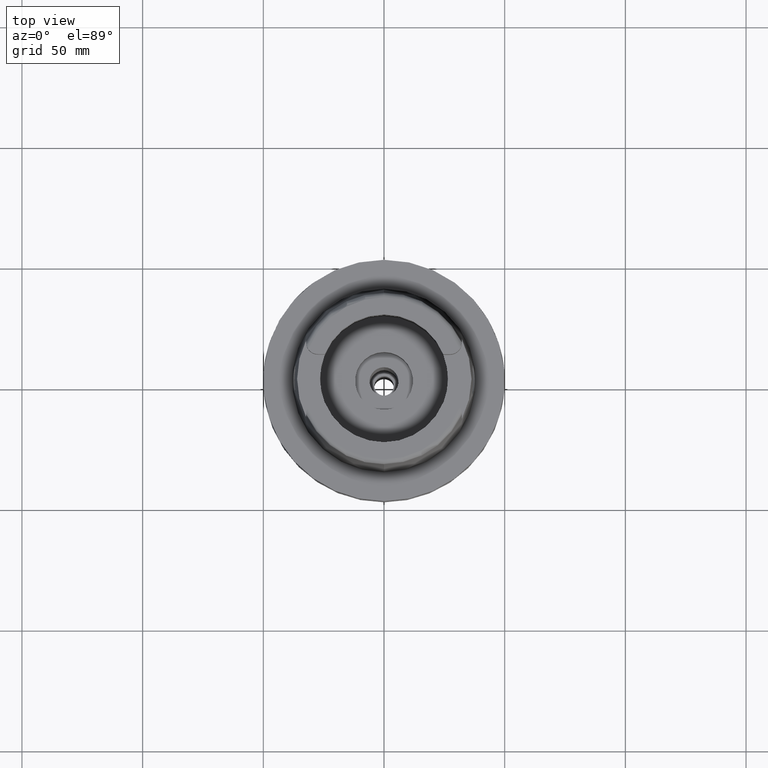
[diagram: clean part render]
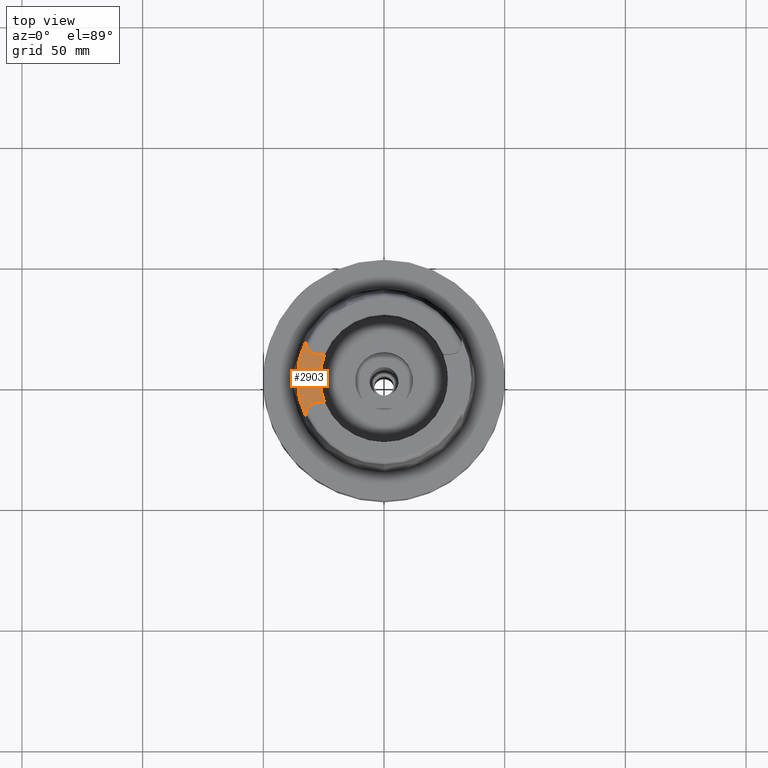
[diagram: same view with one face highlighted and labeled with its STEP entity id]
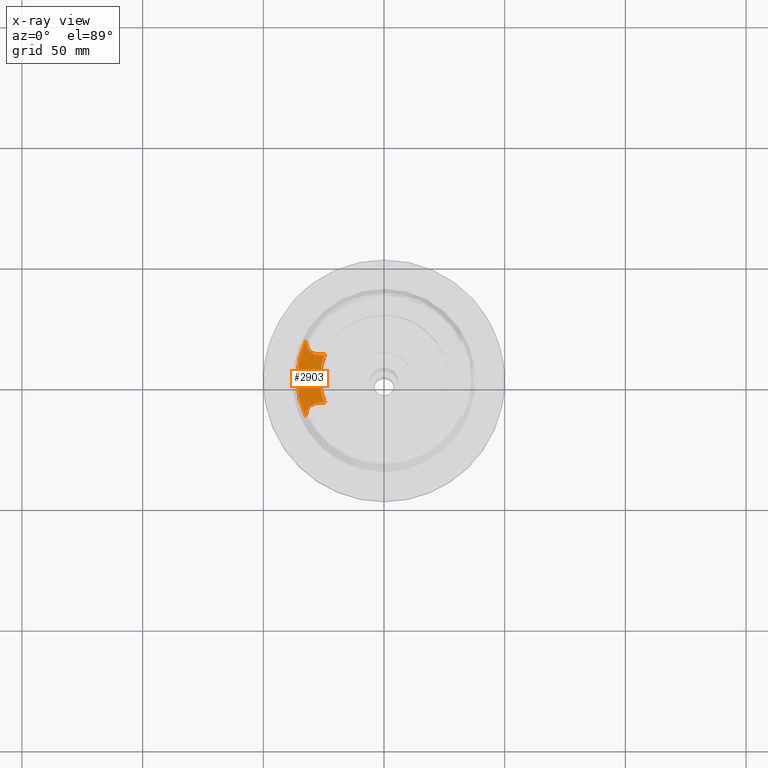
[diagram: x-ray of the same camera — body ghosted, the highlighted face saturated]
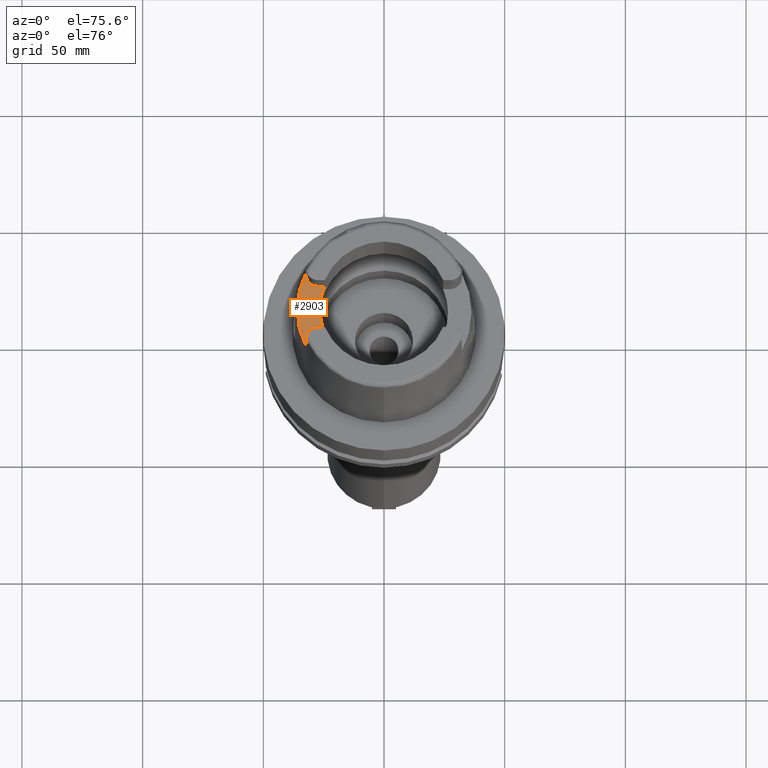
[diagram: same view with one face highlighted and labeled with its STEP entity id]
A machine part, top view. The second image highlights one B-rep face of the part: STEP entity #2903.
The next image is the same camera in x-ray: the body ghosted, the highlighted face saturated — about 0% of this face is hidden behind the body in this view.
A second angle (auxiliary view) of the same face is appended — the face is thin or edge-on in the first view.
In plain terms, the highlighted planar face has unit normal (0, 0, 1).
Its self-contained STEP definition (entity closure, byte-faithful):
#100=CARTESIAN_POINT('',(0.E0,0.E0,4.E1));
#101=DIRECTION('',(0.E0,0.E0,1.E0));
#102=DIRECTION('',(-9.259134021805E-1,3.777358490566E-1,0.E0));
#103=AXIS2_PLACEMENT_3D('',#100,#101,#102);
#108=DIRECTION('',(-1.E0,1.435733797137E-13,0.E0));
#109=VECTOR('',#108,2.833294842218E0);
#110=CARTESIAN_POINT('',(-2.453670515778E1,-1.001E1,4.E1));
#111=LINE('',#110,#109);
#115=CARTESIAN_POINT('',(-2.737E1,-1.489E1,4.E1));
#116=DIRECTION('',(0.E0,0.E0,1.E0));
#117=DIRECTION('',(0.E0,1.E0,0.E0));
#118=AXIS2_PLACEMENT_3D('',#115,#116,#117);
#123=DIRECTION('',(1.119083709708E-6,-9.999999999994E-1,-1.731560047849E-13));
#124=VECTOR('',#123,1.107940431483E0);
#125=CARTESIAN_POINT('',(-3.225E1,-1.489E1,4.E1));
#126=LINE('',#125,#124);
#130=CARTESIAN_POINT('',(0.E0,0.E0,4.E1));
#131=DIRECTION('',(0.E0,0.E0,-1.E0));
#132=DIRECTION('',(-8.958345712660E-1,-4.443876921391E-1,0.E0));
#133=AXIS2_PLACEMENT_3D('',#130,#131,#132);
#138=DIRECTION('',(4.825266097351E-6,-9.999999999884E-1,1.731606717193E-13));
#139=VECTOR('',#138,1.107910570861E0);
#140=CARTESIAN_POINT('',(-3.225000534596E1,1.599791057085E1,4.E1));
#141=LINE('',#140,#139);
#145=CARTESIAN_POINT('',(-2.737E1,1.489E1,4.E1));
#146=DIRECTION('',(0.E0,0.E0,1.E0));
#147=DIRECTION('',(-1.E0,0.E0,0.E0));
#148=AXIS2_PLACEMENT_3D('',#145,#146,#147);
#153=DIRECTION('',(1.E0,1.442003377037E-13,0.E0));
#154=VECTOR('',#153,2.833294842218E0);
#155=CARTESIAN_POINT('',(-2.737E1,1.001E1,4.E1));
#156=LINE('',#155,#154);
#2468=CARTESIAN_POINT('',(-2.737E1,1.001E1,4.E1));
#2469=VERTEX_POINT('',#2468);
#2470=CARTESIAN_POINT('',(-3.225E1,1.489E1,4.E1));
#2471=VERTEX_POINT('',#2470);
#2474=CARTESIAN_POINT('',(-2.453670515778E1,1.001E1,4.E1));
#2475=VERTEX_POINT('',#2474);
#2476=CARTESIAN_POINT('',(-2.453670515778E1,-1.001E1,4.E1));
#2477=VERTEX_POINT('',#2476);
#2482=CARTESIAN_POINT('',(-2.737E1,-1.001E1,4.E1));
#2483=VERTEX_POINT('',#2482);
#2484=CARTESIAN_POINT('',(-3.225E1,-1.489E1,4.E1));
#2485=VERTEX_POINT('',#2484);
#2486=CARTESIAN_POINT('',(-3.224999876012E1,-1.599794043148E1,4.E1));
#2487=VERTEX_POINT('',#2486);
#2488=CARTESIAN_POINT('',(-3.224999999999E1,1.599793480981E1,4.E1));
#2489=VERTEX_POINT('',#2488);
#2883=CARTESIAN_POINT('',(0.E0,0.E0,4.E1));
#2884=DIRECTION('',(0.E0,0.E0,1.E0));
#2885=DIRECTION('',(0.E0,1.E0,0.E0));
#2886=AXIS2_PLACEMENT_3D('',#2883,#2884,#2885);
#2887=PLANE('',#2886);
#2888=ORIENTED_EDGE('',*,*,#2866,.T.);
#2890=ORIENTED_EDGE('',*,*,#2889,.T.);
#2892=ORIENTED_EDGE('',*,*,#2891,.T.);
#2894=ORIENTED_EDGE('',*,*,#2893,.T.);
#2896=ORIENTED_EDGE('',*,*,#2895,.T.);
#2898=ORIENTED_EDGE('',*,*,#2897,.T.);
#2899=ORIENTED_EDGE('',*,*,#2838,.T.);
#2900=ORIENTED_EDGE('',*,*,#2855,.T.);
#2901=EDGE_LOOP('',(#2888,#2890,#2892,#2894,#2896,#2898,#2899,#2900));
#2902=FACE_OUTER_BOUND('',#2901,.F.);
#104=CIRCLE('',#103,2.65E1);
#119=CIRCLE('',#118,4.88E0);
#134=CIRCLE('',#133,3.599995025244E1);
#149=CIRCLE('',#148,4.88E0);
#2838=EDGE_CURVE('',#2471,#2469,#149,.T.);
#2855=EDGE_CURVE('',#2469,#2475,#156,.T.);
#2866=EDGE_CURVE('',#2475,#2477,#104,.T.);
#2889=EDGE_CURVE('',#2477,#2483,#111,.T.);
#2891=EDGE_CURVE('',#2483,#2485,#119,.T.);
#2893=EDGE_CURVE('',#2485,#2487,#126,.T.);
#2895=EDGE_CURVE('',#2487,#2489,#134,.T.);
#2897=EDGE_CURVE('',#2489,#2471,#141,.T.);
#2903=ADVANCED_FACE('',(#2902),#2887,.T.);